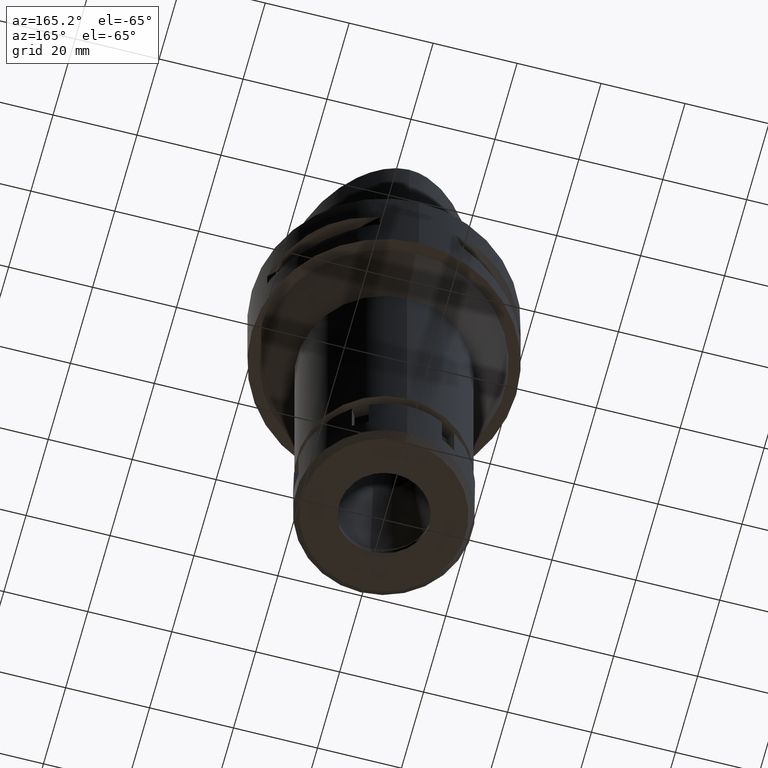
[diagram: clean part render]
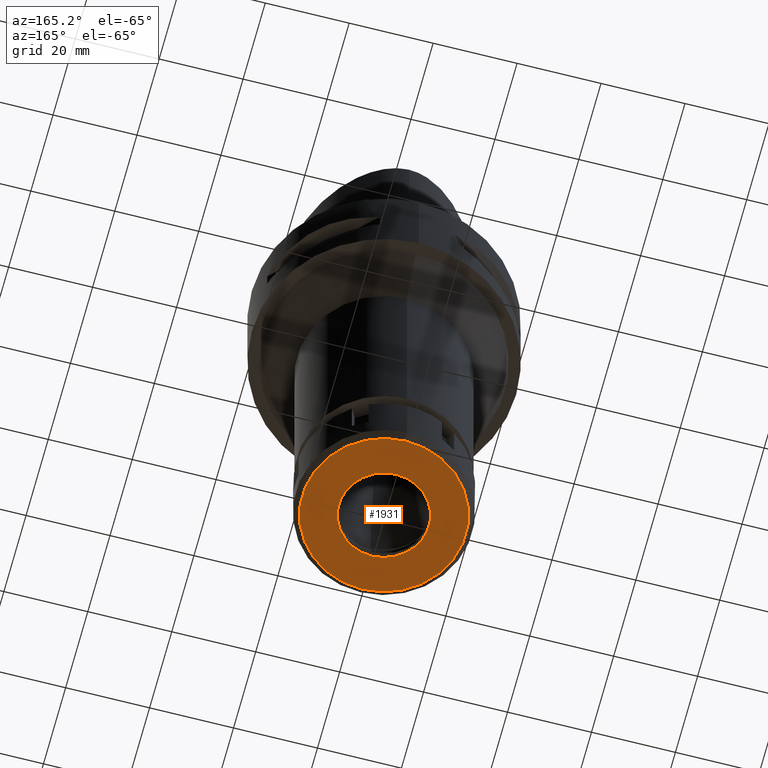
[diagram: same view with one face highlighted and labeled with its STEP entity id]
A machine part, auxiliary view. The second image highlights one B-rep face of the part: STEP entity #1931.
In plain terms, the highlighted planar face has unit normal (0, 0, -1).
Its self-contained STEP definition (entity closure, byte-faithful):
#18 = DIRECTION ( 'NONE',  ( 0.0000000000000000000, -1.000000000000000000, 0.0000000000000000000 ) ) ;
#148 = DIRECTION ( 'NONE',  ( 0.0000000000000000000, 0.0000000000000000000, 1.000000000000000000 ) ) ;
#363 = EDGE_LOOP ( 'NONE', ( #2355, #5152 ) ) ;
#380 = VERTEX_POINT ( 'NONE', #4163 ) ;
#578 = CARTESIAN_POINT ( 'NONE',  ( 0.0000000000000000000, 0.0000000000000000000, -16.00000000000000000 ) ) ;
#590 = CARTESIAN_POINT ( 'NONE',  ( 0.0000000000000000000, 0.0000000000000000000, -16.00000000000000000 ) ) ;
#796 = CIRCLE ( 'NONE', #1429, 10.75000000000000000 ) ;
#873 = CIRCLE ( 'NONE', #3942, 10.75000000000000000 ) ;
#920 = EDGE_CURVE ( 'NONE', #3734, #380, #2227, .T. ) ;
#937 = FACE_OUTER_BOUND ( 'NONE', #363, .T. ) ;
#963 = CIRCLE ( 'NONE', #2061, 19.50000000000000000 ) ;
#1128 = DIRECTION ( 'NONE',  ( 0.0000000000000000000, 1.000000000000000000, 0.0000000000000000000 ) ) ;
#1172 = CARTESIAN_POINT ( 'NONE',  ( 0.0000000000000000000, 19.50000000000000000, -16.00000000000000000 ) ) ;
#1196 = EDGE_LOOP ( 'NONE', ( #2714, #3757 ) ) ;
#1395 = VERTEX_POINT ( 'NONE', #3272 ) ;
#1429 = AXIS2_PLACEMENT_3D ( 'NONE', #4693, #3094, #18 ) ;
#1438 = CARTESIAN_POINT ( 'NONE',  ( 0.0000000000000000000, 0.0000000000000000000, -16.00000000000000000 ) ) ;
#1499 = EDGE_CURVE ( 'NONE', #1395, #2472, #873, .T. ) ;
#1529 = CARTESIAN_POINT ( 'NONE',  ( 0.0000000000000000000, -10.75000000000000000, -16.00000000000000000 ) ) ;
#1824 = EDGE_CURVE ( 'NONE', #2472, #1395, #796, .T. ) ;
#1931 = ADVANCED_FACE ( 'NONE', ( #937, #2641 ), #5229, .T. ) ;
#2061 = AXIS2_PLACEMENT_3D ( 'NONE', #590, #2301, #4098 ) ;
#2227 = CIRCLE ( 'NONE', #5350, 19.50000000000000000 ) ;
#2301 = DIRECTION ( 'NONE',  ( 0.0000000000000000000, 0.0000000000000000000, 1.000000000000000000 ) ) ;
#2355 = ORIENTED_EDGE ( 'NONE', *, *, #920, .F. ) ;
#2472 = VERTEX_POINT ( 'NONE', #1529 ) ;
#2641 = FACE_BOUND ( 'NONE', #1196, .T. ) ;
#2714 = ORIENTED_EDGE ( 'NONE', *, *, #1499, .F. ) ;
#2983 = DIRECTION ( 'NONE',  ( 0.0000000000000000000, -1.000000000000000000, 0.0000000000000000000 ) ) ;
#3094 = DIRECTION ( 'NONE',  ( 0.0000000000000000000, 0.0000000000000000000, -1.000000000000000000 ) ) ;
#3245 = DIRECTION ( 'NONE',  ( 0.0000000000000000000, 0.0000000000000000000, -1.000000000000000000 ) ) ;
#3272 = CARTESIAN_POINT ( 'NONE',  ( 0.0000000000000000000, 10.75000000000000000, -16.00000000000000000 ) ) ;
#3536 = EDGE_CURVE ( 'NONE', #380, #3734, #963, .T. ) ;
#3734 = VERTEX_POINT ( 'NONE', #1172 ) ;
#3757 = ORIENTED_EDGE ( 'NONE', *, *, #1824, .F. ) ;
#3942 = AXIS2_PLACEMENT_3D ( 'NONE', #1438, #3245, #4858 ) ;
#3965 = DIRECTION ( 'NONE',  ( 0.0000000000000000000, 0.0000000000000000000, -1.000000000000000000 ) ) ;
#4098 = DIRECTION ( 'NONE',  ( 0.0000000000000000000, -1.000000000000000000, 0.0000000000000000000 ) ) ;
#4163 = CARTESIAN_POINT ( 'NONE',  ( 0.0000000000000000000, -19.50000000000000000, -16.00000000000000000 ) ) ;
#4693 = CARTESIAN_POINT ( 'NONE',  ( 0.0000000000000000000, 0.0000000000000000000, -16.00000000000000000 ) ) ;
#4858 = DIRECTION ( 'NONE',  ( 0.0000000000000000000, 1.000000000000000000, 0.0000000000000000000 ) ) ;
#4925 = AXIS2_PLACEMENT_3D ( 'NONE', #5174, #3965, #2983 ) ;
#5152 = ORIENTED_EDGE ( 'NONE', *, *, #3536, .F. ) ;
#5174 = CARTESIAN_POINT ( 'NONE',  ( 0.0000000000000000000, 0.0000000000000000000, -16.00000000000000000 ) ) ;
#5229 = PLANE ( 'NONE',  #4925 ) ;
#5350 = AXIS2_PLACEMENT_3D ( 'NONE', #578, #148, #1128 ) ;